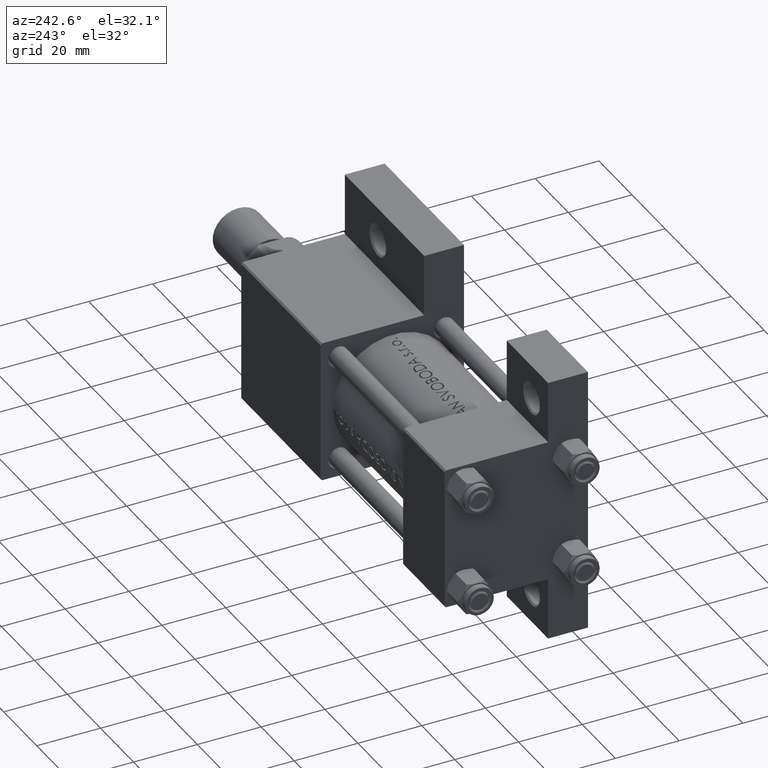
[diagram: clean part render]
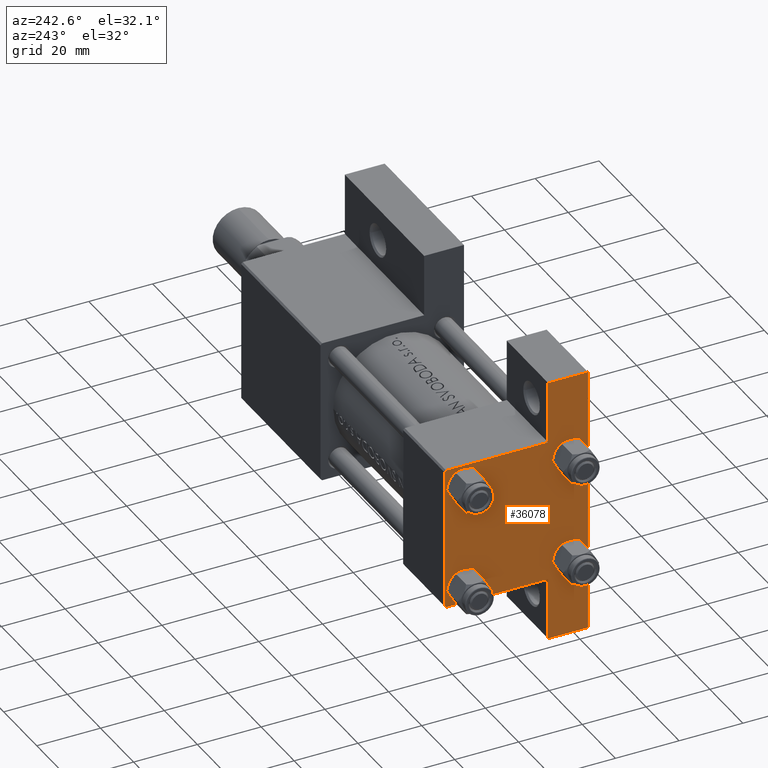
[diagram: same view with one face highlighted and labeled with its STEP entity id]
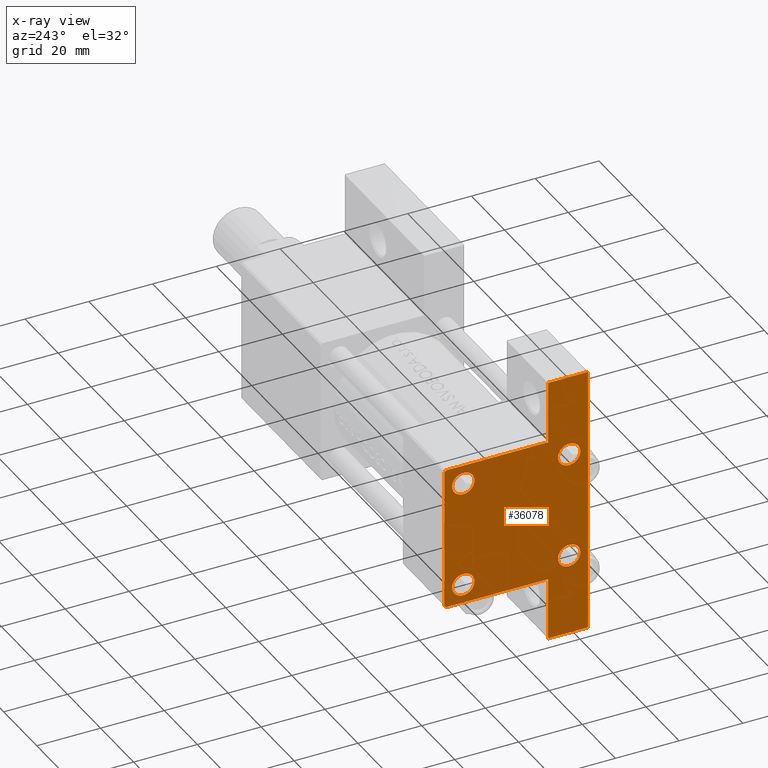
[diagram: x-ray of the same camera — body ghosted, the highlighted face saturated]
A machine part, auxiliary view. The second image highlights one B-rep face of the part: STEP entity #36078.
The next image is the same camera in x-ray: the body ghosted, the highlighted face saturated — about 0% of this face is hidden behind the body in this view.
In plain terms, the highlighted planar face has unit normal (-1, 0, -0).
Its self-contained STEP definition (entity closure, byte-faithful):
#8 = CARTESIAN_POINT ( 'NONE',  ( 0.000000000000000000, 16.59999999999999787, -13.10000000000000675 ) ) ;
#51 = VECTOR ( 'NONE', #24888, 1000.000000000000000 ) ;
#624 = CARTESIAN_POINT ( 'NONE',  ( 0.000000000000000000, 16.59999999999999787, -16.60000000000000497 ) ) ;
#783 = ORIENTED_EDGE ( 'NONE', *, *, #38792, .T. ) ;
#853 = CARTESIAN_POINT ( 'NONE',  ( 0.000000000000000000, 16.59999999999999787, -16.60000000000000497 ) ) ;
#1392 = ORIENTED_EDGE ( 'NONE', *, *, #14587, .T. ) ;
#1631 = CIRCLE ( 'NONE', #45094, 3.499999999999996003 ) ;
#1836 = DIRECTION ( 'NONE',  ( 1.000000000000000000, -0.000000000000000000, 0.000000000000000000 ) ) ;
#2096 = DIRECTION ( 'NONE',  ( 0.000000000000000000, -1.734723475976806848E-16, -1.000000000000000000 ) ) ;
#2247 = EDGE_LOOP ( 'NONE', ( #42834, #783 ) ) ;
#2369 = CIRCLE ( 'NONE', #10118, 3.499999999999996003 ) ;
#2532 = CARTESIAN_POINT ( 'NONE',  ( 0.000000000000000000, -16.59999999999999076, -13.10000000000001030 ) ) ;
#3070 = DIRECTION ( 'NONE',  ( -0.000000000000000000, 0.7071067811865525687, 0.7071067811865425767 ) ) ;
#3147 = VERTEX_POINT ( 'NONE', #2532 ) ;
#3246 = VERTEX_POINT ( 'NONE', #4615 ) ;
#3331 = VERTEX_POINT ( 'NONE', #31353 ) ;
#3364 = CARTESIAN_POINT ( 'NONE',  ( 0.000000000000000000, 16.59999999999999787, -20.10000000000000142 ) ) ;
#4615 = CARTESIAN_POINT ( 'NONE',  ( 0.000000000000000000, 16.59999999999999787, 20.10000000000000142 ) ) ;
#4927 = CARTESIAN_POINT ( 'NONE',  ( 0.000000000000000000, -16.59999999999999076, 20.10000000000000853 ) ) ;
#5123 = DIRECTION ( 'NONE',  ( 0.000000000000000000, 0.000000000000000000, -1.000000000000000000 ) ) ;
#5447 = DIRECTION ( 'NONE',  ( 0.000000000000000000, 0.000000000000000000, 1.000000000000000000 ) ) ;
#5769 = DIRECTION ( 'NONE',  ( 0.000000000000000000, 0.000000000000000000, -1.000000000000000000 ) ) ;
#6207 = EDGE_CURVE ( 'NONE', #36421, #38136, #12458, .T. ) ;
#6850 = VECTOR ( 'NONE', #12389, 1000.000000000000114 ) ;
#7041 = EDGE_CURVE ( 'NONE', #38136, #36421, #1631, .T. ) ;
#7094 = CIRCLE ( 'NONE', #22596, 3.499999999999996003 ) ;
#7157 = CARTESIAN_POINT ( 'NONE',  ( 0.000000000000000000, -21.99999999999997868, 22.50000000000000000 ) ) ;
#7248 = EDGE_CURVE ( 'NONE', #37607, #41266, #27969, .T. ) ;
#7534 = ORIENTED_EDGE ( 'NONE', *, *, #40234, .F. ) ;
#7633 = VECTOR ( 'NONE', #10592, 1000.000000000000000 ) ;
#7678 = AXIS2_PLACEMENT_3D ( 'NONE', #8710, #45894, #41289 ) ;
#7705 = VECTOR ( 'NONE', #17843, 1000.000000000000000 ) ;
#8082 = ORIENTED_EDGE ( 'NONE', *, *, #19055, .T. ) ;
#8710 = CARTESIAN_POINT ( 'NONE',  ( 0.000000000000000000, 16.59999999999999787, 16.60000000000000497 ) ) ;
#8869 = CIRCLE ( 'NONE', #42241, 3.499999999999996003 ) ;
#9593 = LINE ( 'NONE', #46549, #7705 ) ;
#9794 = VERTEX_POINT ( 'NONE', #38367 ) ;
#10050 = CARTESIAN_POINT ( 'NONE',  ( 0.000000000000000000, 22.50000000000000000, -22.49999999999999645 ) ) ;
#10118 = AXIS2_PLACEMENT_3D ( 'NONE', #624, #15422, #22719 ) ;
#10592 = DIRECTION ( 'NONE',  ( -2.463698175388230807E-16, -1.000000000000000000, 0.000000000000000000 ) ) ;
#10821 = CARTESIAN_POINT ( 'NONE',  ( 1.025107321934354758E-14, 42.00000000000000711, -9.999999999999994671 ) ) ;
#12132 = CARTESIAN_POINT ( 'NONE',  ( -3.595989349422702816E-17, -41.99999999999999289, -22.49999999999999289 ) ) ;
#12389 = DIRECTION ( 'NONE',  ( 0.000000000000000000, 0.7071067811865474617, -0.7071067811865474617 ) ) ;
#12458 = CIRCLE ( 'NONE', #15552, 3.499999999999996003 ) ;
#12607 = ORIENTED_EDGE ( 'NONE', *, *, #6207, .T. ) ;
#12643 = DIRECTION ( 'NONE',  ( 1.440457709352326947E-18, -1.000000000000000000, 0.000000000000000000 ) ) ;
#13471 = DIRECTION ( 'NONE',  ( 0.000000000000000000, 0.000000000000000000, 1.000000000000000000 ) ) ;
#14042 = FACE_BOUND ( 'NONE', #2247, .T. ) ;
#14076 = ORIENTED_EDGE ( 'NONE', *, *, #32624, .T. ) ;
#14082 = ORIENTED_EDGE ( 'NONE', *, *, #7248, .F. ) ;
#14414 = CARTESIAN_POINT ( 'NONE',  ( 0.000000000000000000, -16.59999999999999076, -20.10000000000000497 ) ) ;
#14440 = ORIENTED_EDGE ( 'NONE', *, *, #43772, .F. ) ;
#14515 = DIRECTION ( 'NONE',  ( 1.000000000000000000, -0.000000000000000000, 0.000000000000000000 ) ) ;
#14587 = EDGE_CURVE ( 'NONE', #18695, #3147, #8869, .T. ) ;
#14756 = DIRECTION ( 'NONE',  ( 0.000000000000000000, 0.000000000000000000, 1.000000000000000000 ) ) ;
#15069 = ORIENTED_EDGE ( 'NONE', *, *, #40343, .T. ) ;
#15422 = DIRECTION ( 'NONE',  ( 1.000000000000000000, -0.000000000000000000, 0.000000000000000000 ) ) ;
#15552 = AXIS2_PLACEMENT_3D ( 'NONE', #44570, #33868, #29757 ) ;
#15606 = VERTEX_POINT ( 'NONE', #36659 ) ;
#16021 = LINE ( 'NONE', #38152, #47943 ) ;
#17843 = DIRECTION ( 'NONE',  ( 0.000000000000000000, -1.000000000000000000, -7.709882115452476934E-17 ) ) ;
#17928 = FACE_BOUND ( 'NONE', #18863, .T. ) ;
#17947 = CARTESIAN_POINT ( 'NONE',  ( -6.404881882659739909E-17, -22.49999999999999645, -9.999999999999994671 ) ) ;
#18241 = CARTESIAN_POINT ( 'NONE',  ( 0.000000000000000000, -16.59999999999999076, -16.60000000000000853 ) ) ;
#18695 = VERTEX_POINT ( 'NONE', #14414 ) ;
#18863 = EDGE_LOOP ( 'NONE', ( #20826, #12607 ) ) ;
#19055 = EDGE_CURVE ( 'NONE', #3147, #18695, #35313, .T. ) ;
#19181 = VECTOR ( 'NONE', #5769, 1000.000000000000000 ) ;
#19235 = VERTEX_POINT ( 'NONE', #12132 ) ;
#19715 = ORIENTED_EDGE ( 'NONE', *, *, #40873, .T. ) ;
#19935 = LINE ( 'NONE', #37682, #20870 ) ;
#20116 = CARTESIAN_POINT ( 'NONE',  ( 0.000000000000000000, -22.50000000000000000, 22.00000000000000000 ) ) ;
#20826 = ORIENTED_EDGE ( 'NONE', *, *, #7041, .T. ) ;
#20860 = CARTESIAN_POINT ( 'NONE',  ( 0.000000000000000000, 0.000000000000000000, 0.000000000000000000 ) ) ;
#20870 = VECTOR ( 'NONE', #5123, 1000.000000000000000 ) ;
#20956 = VERTEX_POINT ( 'NONE', #34660 ) ;
#20972 = AXIS2_PLACEMENT_3D ( 'NONE', #20860, #39563, #28175 ) ;
#21418 = DIRECTION ( 'NONE',  ( 0.000000000000000000, 0.000000000000000000, 1.000000000000000000 ) ) ;
#22032 = EDGE_LOOP ( 'NONE', ( #8082, #1392 ) ) ;
#22596 = AXIS2_PLACEMENT_3D ( 'NONE', #31979, #1836, #13471 ) ;
#22622 = CARTESIAN_POINT ( 'NONE',  ( 0.000000000000000000, 22.24999999999999645, 22.24999999999999645 ) ) ;
#22719 = DIRECTION ( 'NONE',  ( 0.000000000000000000, 0.000000000000000000, 1.000000000000000000 ) ) ;
#23012 = VERTEX_POINT ( 'NONE', #10821 ) ;
#24134 = VECTOR ( 'NONE', #12643, 1000.000000000000000 ) ;
#24606 = EDGE_LOOP ( 'NONE', ( #38186, #25550 ) ) ;
#24746 = FACE_BOUND ( 'NONE', #24606, .T. ) ;
#24888 = DIRECTION ( 'NONE',  ( 0.000000000000000000, -1.000000000000000000, -2.312964634635742957E-16 ) ) ;
#25227 = PLANE ( 'NONE',  #20972 ) ;
#25550 = ORIENTED_EDGE ( 'NONE', *, *, #47447, .T. ) ;
#25949 = VERTEX_POINT ( 'NONE', #20116 ) ;
#27641 = LINE ( 'NONE', #45621, #19181 ) ;
#27969 = LINE ( 'NONE', #42789, #24134 ) ;
#28175 = DIRECTION ( 'NONE',  ( -0.000000000000000000, 0.000000000000000000, 1.000000000000000000 ) ) ;
#28605 = CARTESIAN_POINT ( 'NONE',  ( 1.025107321934354758E-14, 42.00000000000001421, -9.999999999999994671 ) ) ;
#29246 = ORIENTED_EDGE ( 'NONE', *, *, #31627, .T. ) ;
#29509 = VERTEX_POINT ( 'NONE', #8 ) ;
#29757 = DIRECTION ( 'NONE',  ( 0.000000000000000000, 0.000000000000000000, 1.000000000000000000 ) ) ;
#29867 = CARTESIAN_POINT ( 'NONE',  ( -3.595989349422702816E-17, -41.99999999999999289, -9.999999999999994671 ) ) ;
#30223 = EDGE_CURVE ( 'NONE', #29509, #37582, #33981, .T. ) ;
#30362 = CARTESIAN_POINT ( 'NONE',  ( 0.000000000000000000, 22.50000000000000000, 21.99999999999999645 ) ) ;
#30556 = CARTESIAN_POINT ( 'NONE',  ( 0.000000000000000000, -16.59999999999999076, 13.10000000000001030 ) ) ;
#30642 = DIRECTION ( 'NONE',  ( 0.000000000000000000, -1.734723475976806848E-16, -1.000000000000000000 ) ) ;
#31353 = CARTESIAN_POINT ( 'NONE',  ( 0.000000000000000000, 21.99999999999999289, 22.50000000000000355 ) ) ;
#31627 = EDGE_CURVE ( 'NONE', #3331, #31983, #45459, .T. ) ;
#31781 = VECTOR ( 'NONE', #2096, 1000.000000000000000 ) ;
#31979 = CARTESIAN_POINT ( 'NONE',  ( 0.000000000000000000, 16.59999999999999787, 16.60000000000000497 ) ) ;
#31983 = VERTEX_POINT ( 'NONE', #30362 ) ;
#32624 = EDGE_CURVE ( 'NONE', #31983, #9794, #19935, .T. ) ;
#32953 = EDGE_CURVE ( 'NONE', #3246, #15606, #45700, .T. ) ;
#33432 = EDGE_CURVE ( 'NONE', #41266, #19235, #35381, .T. ) ;
#33868 = DIRECTION ( 'NONE',  ( 1.000000000000000000, -0.000000000000000000, 0.000000000000000000 ) ) ;
#33981 = CIRCLE ( 'NONE', #44080, 3.499999999999996003 ) ;
#34660 = CARTESIAN_POINT ( 'NONE',  ( 1.025107321934354758E-14, 42.00000000000000711, -22.50000000000000711 ) ) ;
#35313 = CIRCLE ( 'NONE', #47721, 3.499999999999996003 ) ;
#35381 = LINE ( 'NONE', #46316, #31781 ) ;
#36078 = ADVANCED_FACE ( 'NONE', ( #17928, #42988, #24746, #14042, #43705 ), #25227, .T. ) ;
#36421 = VERTEX_POINT ( 'NONE', #30556 ) ;
#36659 = CARTESIAN_POINT ( 'NONE',  ( 0.000000000000000000, 16.59999999999999787, 13.10000000000000675 ) ) ;
#37582 = VERTEX_POINT ( 'NONE', #3364 ) ;
#37607 = VERTEX_POINT ( 'NONE', #17947 ) ;
#37682 = CARTESIAN_POINT ( 'NONE',  ( 0.000000000000000000, 22.50000000000000000, 22.50000000000000355 ) ) ;
#38042 = ORIENTED_EDGE ( 'NONE', *, *, #41426, .F. ) ;
#38136 = VERTEX_POINT ( 'NONE', #4927 ) ;
#38152 = CARTESIAN_POINT ( 'NONE',  ( 1.025107321934354758E-14, 42.00000000000001421, 21.70567772497539138 ) ) ;
#38186 = ORIENTED_EDGE ( 'NONE', *, *, #30223, .T. ) ;
#38367 = CARTESIAN_POINT ( 'NONE',  ( 0.000000000000000000, 22.50000000000000000, -9.999999999999984013 ) ) ;
#38792 = EDGE_CURVE ( 'NONE', #15606, #3246, #7094, .T. ) ;
#39423 = DIRECTION ( 'NONE',  ( 0.000000000000000000, 0.000000000000000000, 1.000000000000000000 ) ) ;
#39508 = ORIENTED_EDGE ( 'NONE', *, *, #33432, .F. ) ;
#39563 = DIRECTION ( 'NONE',  ( -1.000000000000000000, 0.000000000000000000, -0.000000000000000000 ) ) ;
#39671 = DIRECTION ( 'NONE',  ( 1.000000000000000000, -0.000000000000000000, 0.000000000000000000 ) ) ;
#39906 = CARTESIAN_POINT ( 'NONE',  ( 0.000000000000000000, -16.59999999999999076, 16.60000000000000853 ) ) ;
#39938 = LINE ( 'NONE', #10050, #51 ) ;
#40234 = EDGE_CURVE ( 'NONE', #25949, #37607, #27641, .T. ) ;
#40343 = EDGE_CURVE ( 'NONE', #25949, #43878, #43900, .T. ) ;
#40873 = EDGE_CURVE ( 'NONE', #23012, #20956, #16021, .T. ) ;
#41266 = VERTEX_POINT ( 'NONE', #29867 ) ;
#41289 = DIRECTION ( 'NONE',  ( 0.000000000000000000, 0.000000000000000000, 1.000000000000000000 ) ) ;
#41426 = EDGE_CURVE ( 'NONE', #23012, #9794, #43907, .T. ) ;
#42144 = CARTESIAN_POINT ( 'NONE',  ( 0.000000000000000000, -16.59999999999999076, -16.60000000000000853 ) ) ;
#42169 = EDGE_LOOP ( 'NONE', ( #7534, #15069, #14440, #29246, #14076, #38042, #19715, #42328, #39508, #14082 ) ) ;
#42241 = AXIS2_PLACEMENT_3D ( 'NONE', #42144, #14515, #14756 ) ;
#42328 = ORIENTED_EDGE ( 'NONE', *, *, #47850, .T. ) ;
#42503 = VECTOR ( 'NONE', #3070, 999.9999999999998863 ) ;
#42789 = CARTESIAN_POINT ( 'NONE',  ( -3.595989349422703432E-17, -41.99999999999998579, -9.999999999999994671 ) ) ;
#42834 = ORIENTED_EDGE ( 'NONE', *, *, #32953, .T. ) ;
#42988 = FACE_BOUND ( 'NONE', #22032, .T. ) ;
#43705 = FACE_OUTER_BOUND ( 'NONE', #42169, .T. ) ;
#43772 = EDGE_CURVE ( 'NONE', #3331, #43878, #9593, .T. ) ;
#43878 = VERTEX_POINT ( 'NONE', #7157 ) ;
#43900 = LINE ( 'NONE', #47542, #42503 ) ;
#43907 = LINE ( 'NONE', #28605, #7633 ) ;
#44080 = AXIS2_PLACEMENT_3D ( 'NONE', #853, #45542, #5447 ) ;
#44260 = DIRECTION ( 'NONE',  ( 1.000000000000000000, -0.000000000000000000, 0.000000000000000000 ) ) ;
#44570 = CARTESIAN_POINT ( 'NONE',  ( 0.000000000000000000, -16.59999999999999076, 16.60000000000000853 ) ) ;
#45094 = AXIS2_PLACEMENT_3D ( 'NONE', #39906, #39671, #39423 ) ;
#45459 = LINE ( 'NONE', #22622, #6850 ) ;
#45542 = DIRECTION ( 'NONE',  ( 1.000000000000000000, -0.000000000000000000, 0.000000000000000000 ) ) ;
#45621 = CARTESIAN_POINT ( 'NONE',  ( 0.000000000000000000, -22.50000000000000000, 22.50000000000000000 ) ) ;
#45700 = CIRCLE ( 'NONE', #7678, 3.499999999999996003 ) ;
#45894 = DIRECTION ( 'NONE',  ( 1.000000000000000000, -0.000000000000000000, 0.000000000000000000 ) ) ;
#46316 = CARTESIAN_POINT ( 'NONE',  ( -3.595989349422702816E-17, -41.99999999999998579, 21.70567772497540560 ) ) ;
#46549 = CARTESIAN_POINT ( 'NONE',  ( 0.000000000000000000, 22.50000000000000000, 22.50000000000000355 ) ) ;
#47447 = EDGE_CURVE ( 'NONE', #37582, #29509, #2369, .T. ) ;
#47542 = CARTESIAN_POINT ( 'NONE',  ( -0.000000000000000000, -22.24999999999984013, 22.25000000000015277 ) ) ;
#47721 = AXIS2_PLACEMENT_3D ( 'NONE', #18241, #44260, #21418 ) ;
#47850 = EDGE_CURVE ( 'NONE', #20956, #19235, #39938, .T. ) ;
#47943 = VECTOR ( 'NONE', #30642, 1000.000000000000000 ) ;